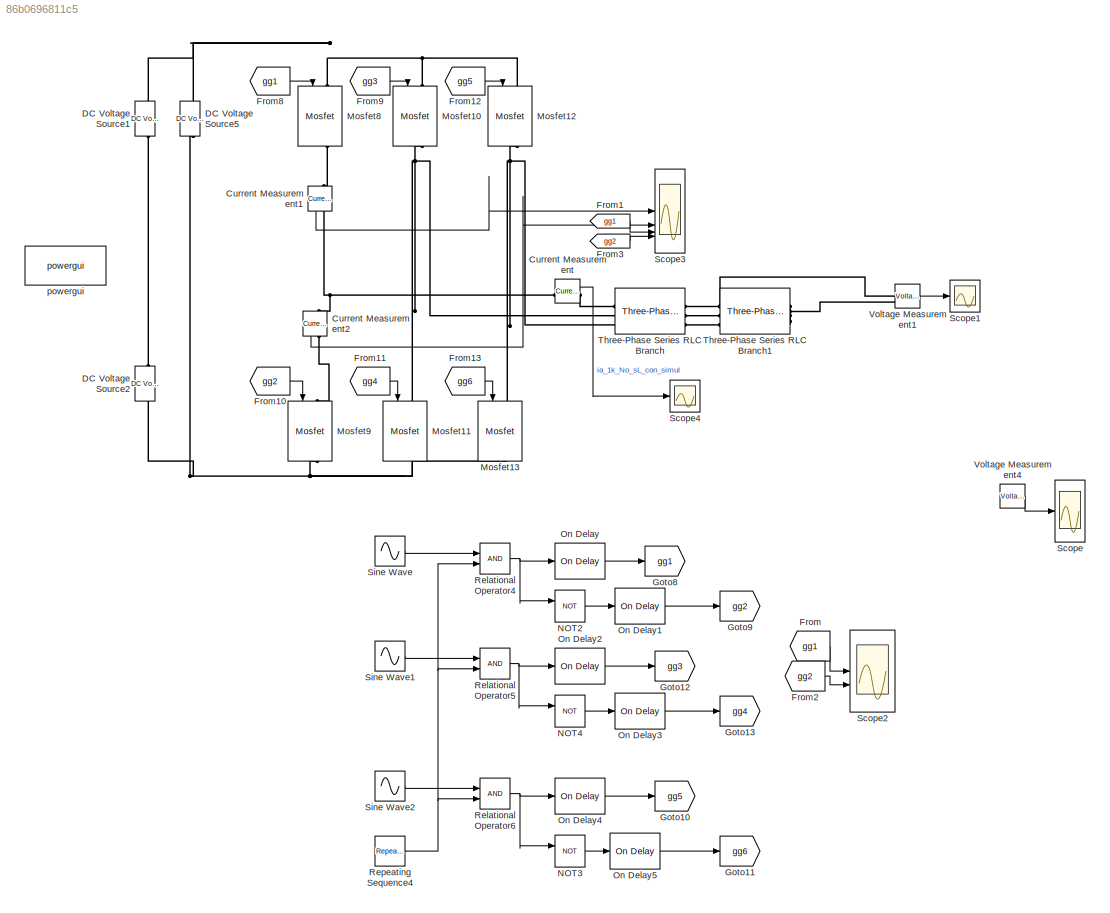
MODEL slx_86b0696811c5
KIND model
CONFIG AbsTol = auto
CONFIG EnableMultiTasking = off
CONFIG FixedStep = auto
CONFIG MaxStep = 1e-6
CONFIG MinStep = auto
CONFIG RelTol = 1e-3
CONFIG SampleTimeConstraint = Unconstrained
CONFIG SolverName = VariableStepAuto
CONFIG StartTime = 0.0
CONFIG StopTime = 0.5
BLOCK [Reference] Current Measurement  REF=spsCurrentMeasurementLib/Current Measurement
  LibrarySourceBlock = sps_lib/Sensors and Measurements/Current Measurement
  SourceBlock = spsCurrentMeasurementLib/Current Measurement
  SourceType = Current Measurement
  UserDataPersistent = on
BLOCK [Reference] Current Measurement1  REF=spsCurrentMeasurementLib/Current Measurement
  LibrarySourceBlock = sps_lib/Sensors and Measurements/Current Measurement
  NameLocation = left
  SourceBlock = spsCurrentMeasurementLib/Current Measurement
  SourceType = Current Measurement
  UserDataPersistent = on
BLOCK [Reference] Current Measurement2  REF=spsCurrentMeasurementLib/Current Measurement
  LibrarySourceBlock = sps_lib/Sensors and Measurements/Current Measurement
  NameLocation = left
  SourceBlock = spsCurrentMeasurementLib/Current Measurement
  SourceType = Current Measurement
  UserDataPersistent = on
BLOCK [Reference] DC Voltage Source1  REF=spsDCVoltageSourceLib/DC Voltage Source
  LibrarySourceBlock = sps_lib/Sources/DC Voltage Source
  SourceBlock = spsDCVoltageSourceLib/DC Voltage Source
  SourceType = DC Voltage Source
BLOCK [Reference] DC Voltage Source2  REF=spsDCVoltageSourceLib/DC Voltage Source
  LibrarySourceBlock = sps_lib/Sources/DC Voltage Source
  SourceBlock = spsDCVoltageSourceLib/DC Voltage Source
  SourceType = DC Voltage Source
BLOCK [Reference] DC Voltage Source5  REF=spsDCVoltageSourceLib/DC Voltage Source
  Commented = on
  LibrarySourceBlock = sps_lib/Sources/DC Voltage Source
  SourceBlock = spsDCVoltageSourceLib/DC Voltage Source
  SourceType = DC Voltage Source
BLOCK [From] From
  GotoTag = gg1
BLOCK [From] From1
  GotoTag = gg1
BLOCK [From] From10
  GotoTag = gg2
BLOCK [From] From11
  GotoTag = gg4
BLOCK [From] From12
  GotoTag = gg5
BLOCK [From] From13
  GotoTag = gg6
BLOCK [From] From2
  GotoTag = gg2
BLOCK [From] From3
  GotoTag = gg2
BLOCK [From] From8
  GotoTag = gg1
BLOCK [From] From9
  GotoTag = gg3
BLOCK [Goto] Goto10
  GotoTag = gg5
BLOCK [Goto] Goto11
  GotoTag = gg6
BLOCK [Goto] Goto12
  GotoTag = gg3
BLOCK [Goto] Goto13
  GotoTag = gg4
BLOCK [Goto] Goto8
  GotoTag = gg1
BLOCK [Goto] Goto9
  GotoTag = gg2
BLOCK [Reference] Mosfet10  REF=spsMosfetLib/Mosfet
  LibrarySourceBlock = sps_lib/Power Electronics/Mosfet
  NameLocation = left
  SourceBlock = spsMosfetLib/Mosfet
  SourceType = Mosfet
BLOCK [Reference] Mosfet11  REF=spsMosfetLib/Mosfet
  LibrarySourceBlock = sps_lib/Power Electronics/Mosfet
  NameLocation = left
  SourceBlock = spsMosfetLib/Mosfet
  SourceType = Mosfet
BLOCK [Reference] Mosfet12  REF=spsMosfetLib/Mosfet
  LibrarySourceBlock = sps_lib/Power Electronics/Mosfet
  NameLocation = left
  SourceBlock = spsMosfetLib/Mosfet
  SourceType = Mosfet
BLOCK [Reference] Mosfet13  REF=spsMosfetLib/Mosfet
  LibrarySourceBlock = sps_lib/Power Electronics/Mosfet
  NameLocation = left
  SourceBlock = spsMosfetLib/Mosfet
  SourceType = Mosfet
BLOCK [Reference] Mosfet8  REF=spsMosfetLib/Mosfet
  LibrarySourceBlock = sps_lib/Power Electronics/Mosfet
  NameLocation = left
  SourceBlock = spsMosfetLib/Mosfet
  SourceType = Mosfet
BLOCK [Reference] Mosfet9  REF=spsMosfetLib/Mosfet
  LibrarySourceBlock = sps_lib/Power Electronics/Mosfet
  NameLocation = left
  SourceBlock = spsMosfetLib/Mosfet
  SourceType = Mosfet
BLOCK [Logic] NOT2
  AllPortsSameDT = off
  IconShape = distinctive
  Operator = NOT
  OutDataTypeStr = boolean
BLOCK [Logic] NOT3
  AllPortsSameDT = off
  IconShape = distinctive
  Operator = NOT
  OutDataTypeStr = boolean
BLOCK [Logic] NOT4
  AllPortsSameDT = off
  IconShape = distinctive
  Operator = NOT
  OutDataTypeStr = boolean
BLOCK [Reference] On Delay  REF=spsOnDelayLib/On Delay
  Commented = through
  LibrarySourceBlock = sps_lib/Control/On Delay
  SourceBlock = spsOnDelayLib/On Delay
  SourceType = On/Off Delay
BLOCK [Reference] On Delay1  REF=spsOnDelayLib/On Delay
  Commented = through
  LibrarySourceBlock = sps_lib/Control/On Delay
  SourceBlock = spsOnDelayLib/On Delay
  SourceType = On/Off Delay
BLOCK [Reference] On Delay2  REF=spsOnDelayLib/On Delay
  Commented = through
  LibrarySourceBlock = sps_lib/Control/On Delay
  SourceBlock = spsOnDelayLib/On Delay
  SourceType = On/Off Delay
BLOCK [Reference] On Delay3  REF=spsOnDelayLib/On Delay
  Commented = through
  LibrarySourceBlock = sps_lib/Control/On Delay
  SourceBlock = spsOnDelayLib/On Delay
  SourceType = On/Off Delay
BLOCK [Reference] On Delay4  REF=spsOnDelayLib/On Delay
  Commented = through
  LibrarySourceBlock = sps_lib/Control/On Delay
  SourceBlock = spsOnDelayLib/On Delay
  SourceType = On/Off Delay
BLOCK [Reference] On Delay5  REF=spsOnDelayLib/On Delay
  Commented = through
  LibrarySourceBlock = sps_lib/Control/On Delay
  SourceBlock = spsOnDelayLib/On Delay
  SourceType = On/Off Delay
BLOCK [RelationalOperator] Relational Operator4
  InputSameDT = off
  OutDataTypeStr = boolean
  RndMeth = Simplest
BLOCK [RelationalOperator] Relational Operator5
  InputSameDT = off
  OutDataTypeStr = boolean
  RndMeth = Simplest
BLOCK [RelationalOperator] Relational Operator6
  InputSameDT = off
  OutDataTypeStr = boolean
  RndMeth = Simplest
BLOCK [Reference] Repeating Sequence4  REF=simulink/Sources/Repeating
Sequence
  SourceBlock = simulink/Sources/Repeating\nSequence
  SourceType = Repeating table
BLOCK [Scope] Scope
  Floating = off
  NumInputPorts = 2
  ScopeSpecificationString = Simulink.scopes.TimeScopeBlockCfg('CurrentConfiguration', extmgr.ConfigurationSet(extmgr.Configuration('Core','General UI',true),extmgr.Configuration('Core','Source UI',true),extmgr.Configuration('Sources','WiredSimulink',true),extmgr.Configuration('Visuals','Time Domain',true,'SerializedDisplays',{struct('MinYLimReal','-66.67027','MaxYLimReal','66.66915','YLabelReal','','MinYLimMag','0.00000','Ma...<+1565ch>
BLOCK [Scope] Scope1
  Floating = off
  NumInputPorts = 1
  ScopeSpecificationString = Simulink.scopes.TimeScopeBlockCfg('CurrentConfiguration', extmgr.ConfigurationSet(extmgr.Configuration('Core','General UI',true),extmgr.Configuration('Core','Source UI',true),extmgr.Configuration('Sources','WiredSimulink',true,'DataLoggingVariableName','U_output','DataLoggingSaveFormat','Array'),extmgr.Configuration('Visuals','Time Domain',true,'SerializedDisplays',{struct('MinYLimReal','-83.25794...<+1614ch>
BLOCK [Scope] Scope2
  Floating = off
  NumInputPorts = 3
  ScopeSpecificationString = Simulink.scopes.TimeScopeBlockCfg('CurrentConfiguration', extmgr.ConfigurationSet(extmgr.Configuration('Core','General UI',true),extmgr.Configuration('Core','Source UI',true),extmgr.Configuration('Sources','WiredSimulink',true,'DataLoggingVariableName','ScopeData2'),extmgr.Configuration('Visuals','Time Domain',true,'SerializedDisplays',{struct('MinYLimReal','-0.125','MaxYLimReal','1.125','YLabelRe...<+1614ch>
BLOCK [Scope] Scope3
  Floating = off
  NumInputPorts = 4
  ScopeSpecificationString = Simulink.scopes.TimeScopeBlockCfg('CurrentConfiguration', extmgr.ConfigurationSet(extmgr.Configuration('Core','General UI',true),extmgr.Configuration('Core','Source UI',true),extmgr.Configuration('Sources','WiredSimulink',true,'DataLoggingVariableName','ScopeData1'),extmgr.Configuration('Visuals','Time Domain',true,'SerializedDisplays',{struct('MinYLimReal','-2.02565','MaxYLimReal','2.60417','YLab...<+3161ch>
BLOCK [Scope] Scope4
  Floating = off
  NumInputPorts = 1
  ScopeSpecificationString = Simulink.scopes.TimeScopeBlockCfg('CurrentConfiguration', extmgr.ConfigurationSet(extmgr.Configuration('Core','General UI',true),extmgr.Configuration('Core','Source UI',true),extmgr.Configuration('Sources','WiredSimulink',true,'DataLoggingVariableName','ScopeData1'),extmgr.Configuration('Visuals','Time Domain',true,'SerializedDisplays',{struct('MinYLimReal','-2.62643','MaxYLimReal','2.62342','YLab...<+1515ch>
BLOCK [Sin] Sine Wave
  Amplitude = 0.5
  Frequency = 50*2*pi
  SampleTime = 0
BLOCK [Sin] Sine Wave1
  Amplitude = 0.5
  Frequency = 50*2*pi
  Phase = 2/3*pi
  SampleTime = 0
BLOCK [Sin] Sine Wave2
  Amplitude = 0.5
  Frequency = 50*2*pi
  Phase = 4/3*pi
  SampleTime = 0
BLOCK [Reference] Three-Phase Series RLC Branch  REF=spsThreePhaseSeriesRLCBranchLib/Three-Phase
Series RLC Branch
  AttributesFormatString = \n
  LibrarySourceBlock = sps_lib/Passives/Three-Phase\nSeries RLC Branch
  SourceBlock = spsThreePhaseSeriesRLCBranchLib/Three-Phase\nSeries RLC Branch
  SourceType = Three-Phase Series RLC Branch
BLOCK [Reference] Three-Phase Series RLC Branch1  REF=spsThreePhaseSeriesRLCBranchLib/Three-Phase
Series RLC Branch
  AttributesFormatString = \n
  LibrarySourceBlock = sps_lib/Passives/Three-Phase\nSeries RLC Branch
  SourceBlock = spsThreePhaseSeriesRLCBranchLib/Three-Phase\nSeries RLC Branch
  SourceType = Three-Phase Series RLC Branch
BLOCK [Reference] Voltage Measurement1  REF=spsVoltageMeasurementLib/Voltage Measurement
  LibrarySourceBlock = sps_lib/Sensors and Measurements/Voltage Measurement
  SourceBlock = spsVoltageMeasurementLib/Voltage Measurement
  SourceType = Voltage Measurement
  UserDataPersistent = on
BLOCK [Reference] Voltage Measurement4  REF=spsVoltageMeasurementLib/Voltage Measurement
  LibrarySourceBlock = sps_lib/Sensors and Measurements/Voltage Measurement
  SourceBlock = spsVoltageMeasurementLib/Voltage Measurement
  SourceType = Voltage Measurement
  UserDataPersistent = on
BLOCK [Reference] powergui  REF=sps_lib/powergui
  LibrarySourceBlock = sps_lib/powergui
  Priority = 1
  SourceBlock = sps_lib/powergui
  SourceType = PSB option menu block
LINE Current Measurement1:1 -> Scope3:1
LINE Current Measurement2:1 -> Scope3:2
LINE Current Measurement:1 -> Scope4:1
LINE From10:1 -> Mosfet9:1
LINE From11:1 -> Mosfet11:1
LINE From12:1 -> Mosfet12:1
LINE From13:1 -> Mosfet13:1
LINE From1:1 -> Scope3:3
LINE From2:1 -> Scope2:2
LINE From3:1 -> Scope3:4
LINE From8:1 -> Mosfet8:1
LINE From9:1 -> Mosfet10:1
LINE From:1 -> Scope2:1
LINE NOT2:1 -> On Delay1:1
LINE NOT3:1 -> On Delay5:1
LINE NOT4:1 -> On Delay3:1
LINE On Delay1:1 -> Goto9:1
LINE On Delay2:1 -> Goto12:1
LINE On Delay3:1 -> Goto13:1
LINE On Delay4:1 -> Goto10:1
LINE On Delay5:1 -> Goto11:1
LINE On Delay:1 -> Goto8:1
NET Relational Operator4:1 -> NOT2:1, On Delay:1
NET Relational Operator5:1 -> NOT4:1, On Delay2:1
NET Relational Operator6:1 -> NOT3:1, On Delay4:1
NET Repeating Sequence4:1 -> Relational Operator4:2, Relational Operator5:2, Relational Operator6:2
LINE Sine Wave1:1 -> Relational Operator5:1
LINE Sine Wave2:1 -> Relational Operator6:1
LINE Sine Wave:1 -> Relational Operator4:1
LINE Voltage Measurement1:1 -> Scope1:1
LINE Voltage Measurement4:1 -> Scope:1
PLINE Current Measurement1:LConn1 -- Mosfet8:RConn1
PNET net1: Current Measurement1:RConn1 -- Current Measurement2:LConn1 -- Current Measurement:LConn1
PLINE Current Measurement2:RConn1 -- Mosfet9:LConn1
PLINE Current Measurement:RConn1 -- Three-Phase Series RLC Branch:LConn1
PLINE DC Voltage Source1:LConn1 -- DC Voltage Source2:RConn1
PNET net2: DC Voltage Source1:RConn1 -- DC Voltage Source5:RConn1 -- Mosfet10:LConn1 -- Mosfet12:LConn1 -- Mosfet8:LConn1
PNET net3: DC Voltage Source2:LConn1 -- DC Voltage Source5:LConn1 -- Mosfet11:RConn1 -- Mosfet13:RConn1 -- Mosfet9:RConn1
PNET net4: Mosfet10:RConn1 -- Mosfet11:LConn1 -- Three-Phase Series RLC Branch:LConn2
PNET net5: Mosfet12:RConn1 -- Mosfet13:LConn1 -- Three-Phase Series RLC Branch:LConn3
PNET net6: Three-Phase Series RLC Branch1:LConn1 -- Three-Phase Series RLC Branch:RConn1 -- Voltage Measurement1:LConn1
PLINE Three-Phase Series RLC Branch1:LConn2 -- Three-Phase Series RLC Branch:RConn2
PLINE Three-Phase Series RLC Branch1:LConn3 -- Three-Phase Series RLC Branch:RConn3
PNET net7: Three-Phase Series RLC Branch1:RConn1 -- Three-Phase Series RLC Branch1:RConn2 -- Three-Phase Series RLC Branch1:RConn3 -- Voltage Measurement1:LConn2
note: NET lines group one-source signal fan-out (src -> all destinations, sorted); 1:1 wires keep LINE; PNET lines group multi-terminal physical nets as a canonical sorted terminal list (undirected conserving connections); 2-terminal nets keep the pairwise PLINE form
